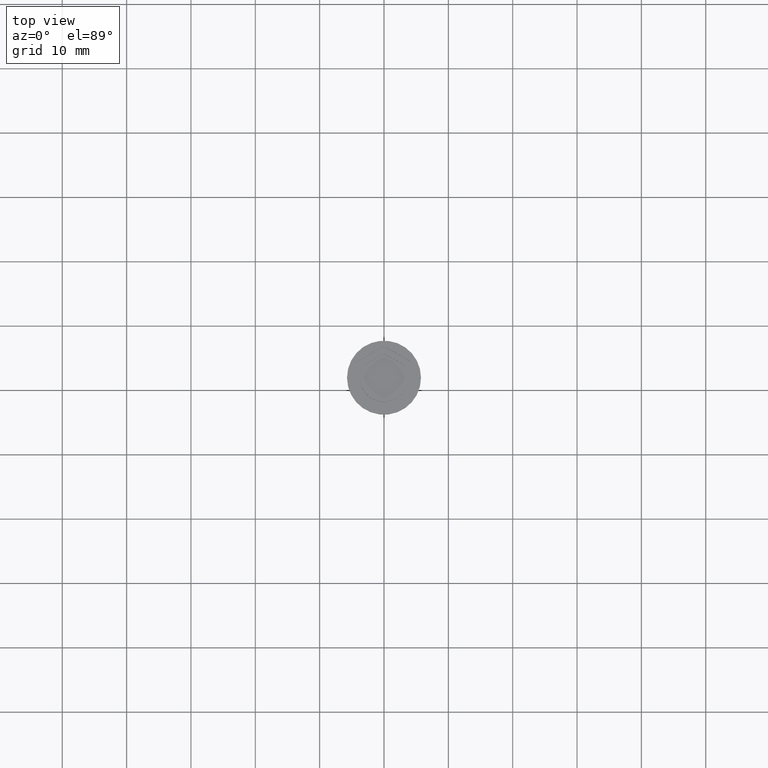
[diagram: clean part render]
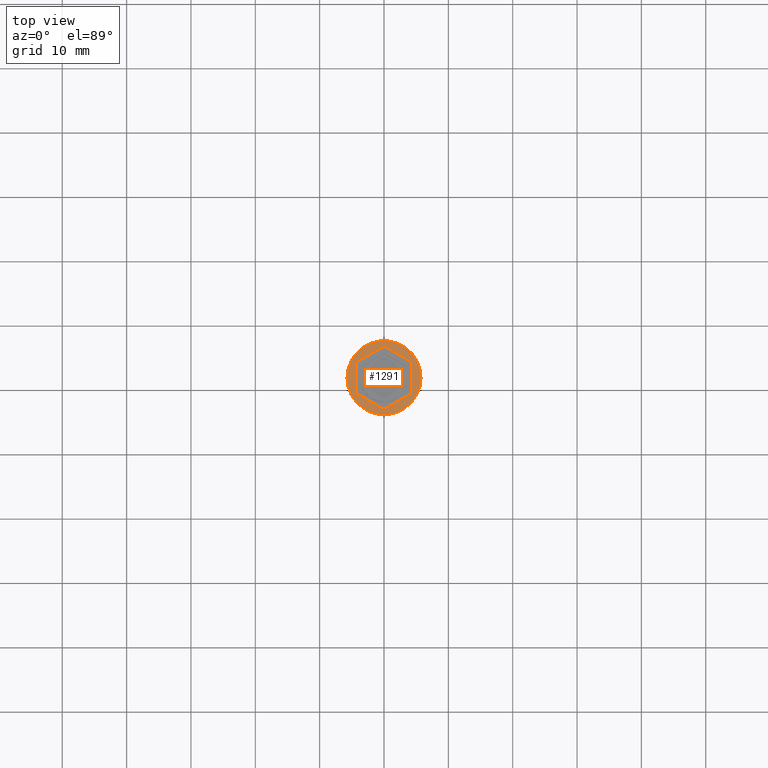
[diagram: same view with one face highlighted and labeled with its STEP entity id]
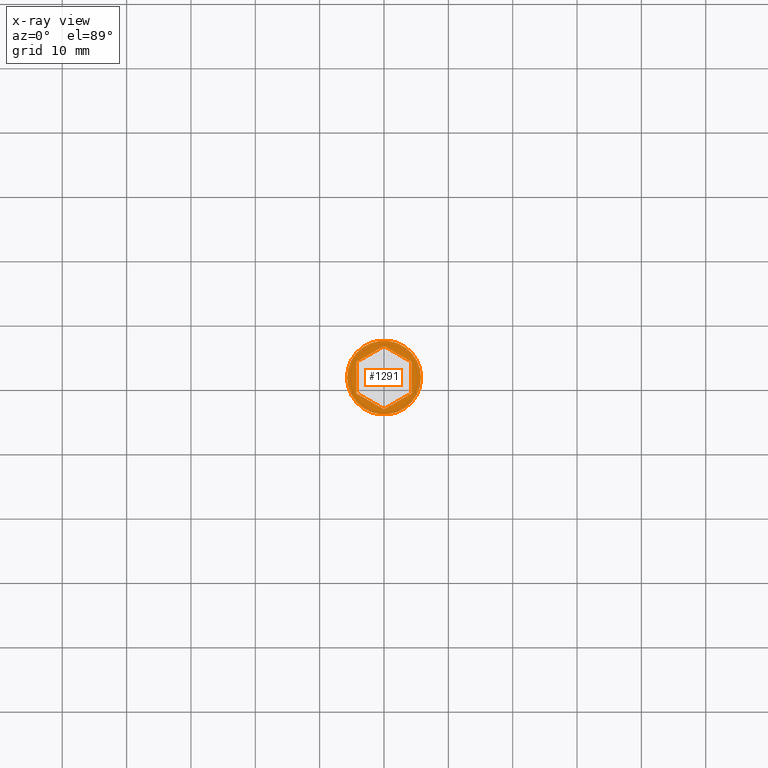
[diagram: x-ray of the same camera — body ghosted, the highlighted face saturated]
A machine part, top view. The second image highlights one B-rep face of the part: STEP entity #1291.
The next image is the same camera in x-ray: the body ghosted, the highlighted face saturated — about 0% of this face is hidden behind the body in this view.
In plain terms, the highlighted planar face has unit normal (0, -0, 1).
Its self-contained STEP definition (entity closure, byte-faithful):
#26 = CARTESIAN_POINT ( 'NONE',  ( 4.250000000000000000, -2.453738644055909912, 0.000000000000000000 ) ) ;
#28 = ORIENTED_EDGE ( 'NONE', *, *, #140, .T. ) ;
#29 = DIRECTION ( 'NONE',  ( 0.8660254037844387076, -0.4999999999999999445, 0.000000000000000000 ) ) ;
#49 = VECTOR ( 'NONE', #731, 1000.000000000000000 ) ;
#83 = DIRECTION ( 'NONE',  ( -0.000000000000000000, -0.000000000000000000, 1.000000000000000000 ) ) ;
#140 = EDGE_CURVE ( 'NONE', #2157, #741, #1191, .T. ) ;
#154 = LINE ( 'NONE', #1770, #1793 ) ;
#172 = VECTOR ( 'NONE', #418, 1000.000000000000114 ) ;
#285 = CARTESIAN_POINT ( 'NONE',  ( 5.750000000000000000, 0.000000000000000000, 0.000000000000000000 ) ) ;
#287 = EDGE_CURVE ( 'NONE', #1507, #997, #154, .T. ) ;
#298 = DIRECTION ( 'NONE',  ( 0.000000000000000000, -0.000000000000000000, 1.000000000000000000 ) ) ;
#344 = CARTESIAN_POINT ( 'NONE',  ( 0.000000000000000000, 0.000000000000000000, 0.000000000000000000 ) ) ;
#381 = DIRECTION ( 'NONE',  ( 1.000000000000000000, 0.000000000000000000, 0.000000000000000000 ) ) ;
#401 = ORIENTED_EDGE ( 'NONE', *, *, #287, .F. ) ;
#418 = DIRECTION ( 'NONE',  ( -0.8660254037844387076, 0.4999999999999998335, 0.000000000000000000 ) ) ;
#450 = CARTESIAN_POINT ( 'NONE',  ( 0.000000000000000000, 4.907477288111818936, 0.000000000000000000 ) ) ;
#521 = CARTESIAN_POINT ( 'NONE',  ( -4.250000000000000000, 2.453738644055909468, 0.000000000000000000 ) ) ;
#524 = EDGE_CURVE ( 'NONE', #2193, #2307, #757, .T. ) ;
#547 = DIRECTION ( 'NONE',  ( 1.000000000000000000, 0.000000000000000000, 0.000000000000000000 ) ) ;
#571 = CARTESIAN_POINT ( 'NONE',  ( -4.250000000000000000, 2.453738644055909468, 0.000000000000000000 ) ) ;
#582 = CARTESIAN_POINT ( 'NONE',  ( 4.392932287340942424E-16, -4.907477288111819824, 0.000000000000000000 ) ) ;
#684 = DIRECTION ( 'NONE',  ( -0.8660254037844387076, -0.4999999999999999445, 0.000000000000000000 ) ) ;
#723 = CARTESIAN_POINT ( 'NONE',  ( 4.250000000000000000, -2.453738644055909912, 0.000000000000000000 ) ) ;
#731 = DIRECTION ( 'NONE',  ( 0.000000000000000000, -1.000000000000000000, 0.000000000000000000 ) ) ;
#741 = VERTEX_POINT ( 'NONE', #285 ) ;
#757 = LINE ( 'NONE', #2074, #172 ) ;
#807 = ORIENTED_EDGE ( 'NONE', *, *, #2239, .F. ) ;
#838 = VERTEX_POINT ( 'NONE', #521 ) ;
#885 = CARTESIAN_POINT ( 'NONE',  ( -4.250000000000000000, -2.453738644055909912, 0.000000000000000000 ) ) ;
#908 = LINE ( 'NONE', #1819, #921 ) ;
#921 = VECTOR ( 'NONE', #29, 1000.000000000000000 ) ;
#985 = CARTESIAN_POINT ( 'NONE',  ( 0.000000000000000000, 0.000000000000000000, 0.000000000000000000 ) ) ;
#997 = VERTEX_POINT ( 'NONE', #26 ) ;
#1005 = ORIENTED_EDGE ( 'NONE', *, *, #524, .F. ) ;
#1044 = ORIENTED_EDGE ( 'NONE', *, *, #1628, .F. ) ;
#1178 = CARTESIAN_POINT ( 'NONE',  ( 4.250000000000000000, 2.453738644055909912, 0.000000000000000000 ) ) ;
#1191 = CIRCLE ( 'NONE', #2022, 5.750000000000000000 ) ;
#1205 = LINE ( 'NONE', #450, #2134 ) ;
#1242 = ORIENTED_EDGE ( 'NONE', *, *, #1707, .F. ) ;
#1243 = DIRECTION ( 'NONE',  ( 0.8660254037844385966, 0.5000000000000001110, 0.000000000000000000 ) ) ;
#1266 = LINE ( 'NONE', #723, #1671 ) ;
#1291 = ADVANCED_FACE ( 'NONE', ( #1364, #2329 ), #2089, .T. ) ;
#1364 = FACE_BOUND ( 'NONE', #2296, .T. ) ;
#1428 = DIRECTION ( 'NONE',  ( 0.000000000000000000, 1.000000000000000000, 0.000000000000000000 ) ) ;
#1507 = VERTEX_POINT ( 'NONE', #582 ) ;
#1545 = EDGE_CURVE ( 'NONE', #838, #2340, #1807, .T. ) ;
#1628 = EDGE_CURVE ( 'NONE', #2340, #1507, #908, .T. ) ;
#1671 = VECTOR ( 'NONE', #1428, 1000.000000000000000 ) ;
#1680 = DIRECTION ( 'NONE',  ( 1.000000000000000000, 0.000000000000000000, 0.000000000000000000 ) ) ;
#1707 = EDGE_CURVE ( 'NONE', #997, #2193, #1266, .T. ) ;
#1751 = AXIS2_PLACEMENT_3D ( 'NONE', #344, #1766, #381 ) ;
#1766 = DIRECTION ( 'NONE',  ( -0.000000000000000000, -0.000000000000000000, 1.000000000000000000 ) ) ;
#1770 = CARTESIAN_POINT ( 'NONE',  ( 4.392932287340942424E-16, -4.907477288111819824, 0.000000000000000000 ) ) ;
#1793 = VECTOR ( 'NONE', #1243, 1000.000000000000000 ) ;
#1807 = LINE ( 'NONE', #571, #49 ) ;
#1819 = CARTESIAN_POINT ( 'NONE',  ( -4.250000000000000000, -2.453738644055909912, 0.000000000000000000 ) ) ;
#1958 = ORIENTED_EDGE ( 'NONE', *, *, #2309, .T. ) ;
#1963 = CARTESIAN_POINT ( 'NONE',  ( 0.000000000000000000, 4.907477288111818936, 0.000000000000000000 ) ) ;
#1992 = EDGE_LOOP ( 'NONE', ( #1958, #28 ) ) ;
#2022 = AXIS2_PLACEMENT_3D ( 'NONE', #985, #83, #1680 ) ;
#2074 = CARTESIAN_POINT ( 'NONE',  ( 4.250000000000000000, 2.453738644055909912, 0.000000000000000000 ) ) ;
#2089 = PLANE ( 'NONE',  #2124 ) ;
#2124 = AXIS2_PLACEMENT_3D ( 'NONE', #2163, #298, #547 ) ;
#2134 = VECTOR ( 'NONE', #684, 999.9999999999998863 ) ;
#2157 = VERTEX_POINT ( 'NONE', #2281 ) ;
#2163 = CARTESIAN_POINT ( 'NONE',  ( 0.000000000000000000, 0.000000000000000000, 0.000000000000000000 ) ) ;
#2174 = CIRCLE ( 'NONE', #1751, 5.750000000000000000 ) ;
#2193 = VERTEX_POINT ( 'NONE', #1178 ) ;
#2239 = EDGE_CURVE ( 'NONE', #2307, #838, #1205, .T. ) ;
#2281 = CARTESIAN_POINT ( 'NONE',  ( -5.750000000000000000, 7.041719095097280880E-16, 0.000000000000000000 ) ) ;
#2296 = EDGE_LOOP ( 'NONE', ( #1005, #1242, #401, #1044, #2333, #807 ) ) ;
#2307 = VERTEX_POINT ( 'NONE', #1963 ) ;
#2309 = EDGE_CURVE ( 'NONE', #741, #2157, #2174, .T. ) ;
#2329 = FACE_OUTER_BOUND ( 'NONE', #1992, .T. ) ;
#2333 = ORIENTED_EDGE ( 'NONE', *, *, #1545, .F. ) ;
#2340 = VERTEX_POINT ( 'NONE', #885 ) ;